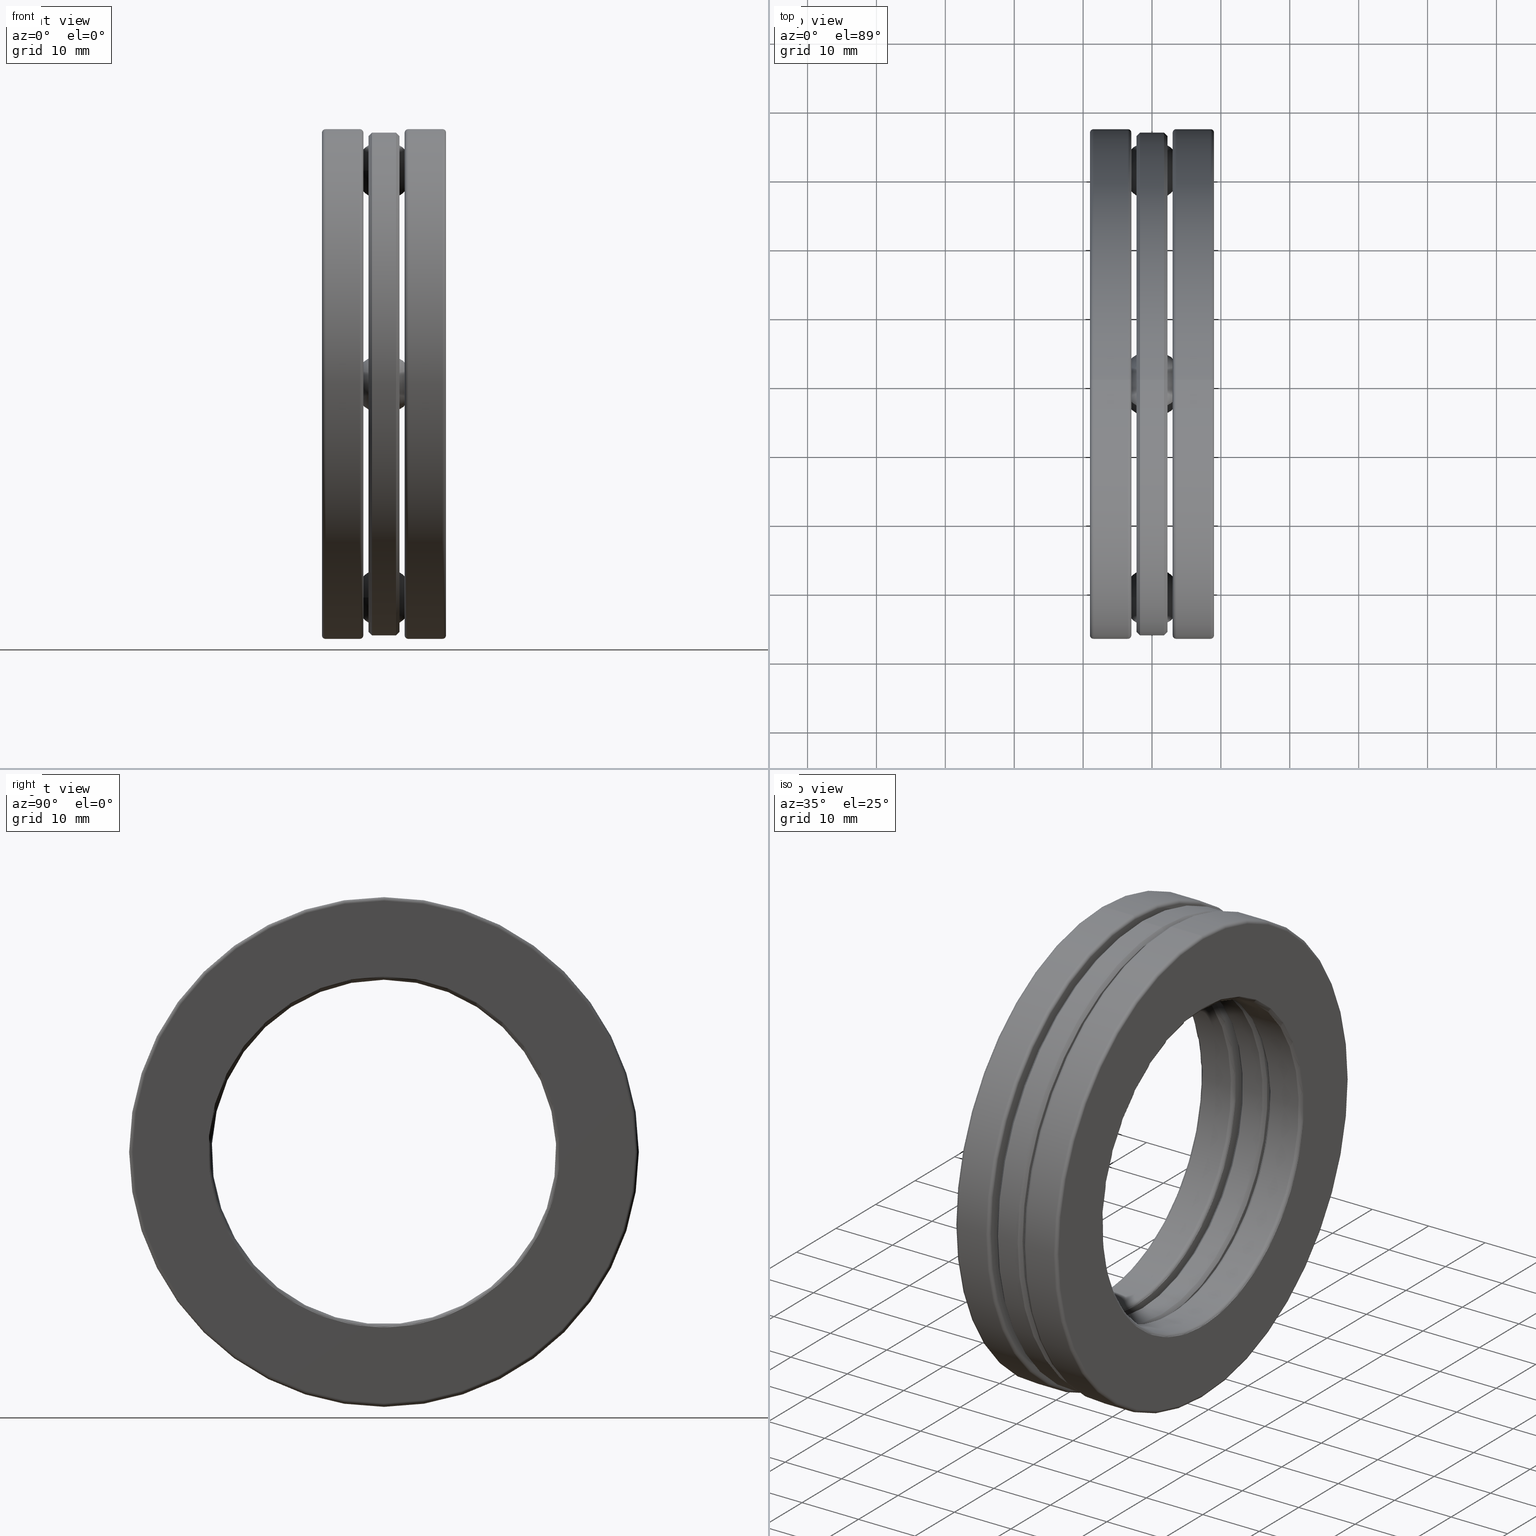
[diagram: canonical four-view strip — front | top / right | iso, engineering-drawing reading convention]
A machine part, canonical four-view strip (front | top / right | iso — engineering-drawing reading convention). The complete STEP part file that produces these views, byte-faithful:
ISO-10303-21;
HEADER;
FILE_DESCRIPTION (( 'STEP AP203' ),
    '1' );
FILE_NAME ('2910-ABB.step',
    '2017-03-07T16:43:02',
    ( '' ),
    ( '' ),
    'SwSTEP 2.0',
    'SolidWorks 2017',
    '' );
FILE_SCHEMA (( 'CONFIG_CONTROL_DESIGN' ));
ENDSEC;

DATA;
#1 = CIRCLE ( 'NONE', #438, 1.004499999999999900 ) ;
#2 = PRODUCT_DEFINITION ( 'UNKNOWN', '', #550, #524 ) ;
#3 = ORIENTED_EDGE ( 'NONE', *, *, #650, .T. ) ;
#4 = VERTEX_POINT ( 'NONE', #794 ) ;
#5 = CIRCLE ( 'NONE', #689, 1.004499999999999900 ) ;
#6 = EDGE_CURVE ( 'NONE', #821, #821, #561, .T. ) ;
#7 = DIRECTION ( 'NONE',  ( -1.000000000000000000, -0.0000000000000000000, -0.0000000000000000000 ) ) ;
#8 = AXIS2_PLACEMENT_3D ( 'NONE', #29, #213, #718 ) ;
#9 = CLOSED_SHELL ( 'NONE', ( #75 ) ) ;
#10 = ORIENTED_EDGE ( 'NONE', *, *, #157, .T. ) ;
#11 = CONICAL_SURFACE ( 'NONE', #654, 1.416499999999999400, 0.7853981633974502800 ) ;
#12 = DIRECTION ( 'NONE',  ( 0.0000000000000000000, 0.0000000000000000000, 1.000000000000000000 ) ) ;
#13 = EDGE_CURVE ( 'NONE', #94, #94, #128, .T. ) ;
#14 = FACE_BOUND ( 'NONE', #139, .T. ) ;
#15 = PLANE ( 'NONE',  #559 ) ;
#16 = EDGE_LOOP ( 'NONE', ( #767 ) ) ;
#17 = ORIENTED_EDGE ( 'NONE', *, *, #249, .T. ) ;
#18 = LOCAL_TIME ( 11, 43, 2.000000000000000000, #456 ) ;
#19 = DIRECTION ( 'NONE',  ( 0.0000000000000000000, 0.0000000000000000000, -1.000000000000000000 ) ) ;
#20 = AXIS2_PLACEMENT_3D ( 'NONE', #351, #731, #469 ) ;
#21 = FACE_BOUND ( 'NONE', #30, .T. ) ;
#22 = DIRECTION ( 'NONE',  ( 0.0000000000000000000, 0.0000000000000000000, 1.000000000000000000 ) ) ;
#23 = DIRECTION ( 'NONE',  ( -1.000000000000000000, 0.0000000000000000000, 0.0000000000000000000 ) ) ;
#24 = CARTESIAN_POINT ( 'NONE',  ( 0.1181690300000006300, 0.0000000000000000000, 1.436499999999999400 ) ) ;
#25 = DIRECTION ( 'NONE',  ( -1.000000000000000000, -0.0000000000000000000, -0.0000000000000000000 ) ) ;
#26 = CARTESIAN_POINT ( 'NONE',  ( 0.0000000000000000000, 0.0000000000000000000, 0.0000000000000000000 ) ) ;
#27 = DIRECTION ( 'NONE',  ( 0.0000000000000000000, 0.0000000000000000000, 1.000000000000000000 ) ) ;
#28 = AXIS2_PLACEMENT_3D ( 'NONE', #420, #668, #656 ) ;
#29 = CARTESIAN_POINT ( 'NONE',  ( 0.08862500000000002300, 1.278405892217413100E-014, 1.220499999999999700 ) ) ;
#30 = EDGE_LOOP ( 'NONE', ( #129 ) ) ;
#31 = CARTESIAN_POINT ( 'NONE',  ( -0.3344999999999999600, 0.0000000000000000000, 1.456499999999999700 ) ) ;
#32 = EDGE_LOOP ( 'NONE', ( #186 ) ) ;
#33 = CIRCLE ( 'NONE', #390, 1.436499999999999200 ) ;
#34 = AXIS2_PLACEMENT_3D ( 'NONE', #138, #704, #506 ) ;
#35 = DIRECTION ( 'NONE',  ( -1.000000000000000000, -0.0000000000000000000, -0.0000000000000000000 ) ) ;
#36 = DIRECTION ( 'NONE',  ( -1.000000000000000000, -0.0000000000000000000, -0.0000000000000000000 ) ) ;
#37 = TOROIDAL_SURFACE ( 'NONE', #206, 1.436499999999999200, 0.02000000000000014600 ) ;
#38 = EDGE_LOOP ( 'NONE', ( #17 ) ) ;
#39 = ADVANCED_FACE ( 'NONE', ( #683, #304 ), #692, .F. ) ;
#40 = ORIENTED_EDGE ( 'NONE', *, *, #631, .F. ) ;
#41 = CARTESIAN_POINT ( 'NONE',  ( 0.3345000000000006900, 0.0000000000000000000, 0.0000000000000000000 ) ) ;
#42 = CIRCLE ( 'NONE', #459, 1.436499999999999400 ) ;
#43 = DIRECTION ( 'NONE',  ( -1.000000000000000000, -0.0000000000000000000, -0.0000000000000000000 ) ) ;
#44 = DIRECTION ( 'NONE',  ( 0.0000000000000000000, 0.0000000000000000000, 1.000000000000000000 ) ) ;
#45 = EDGE_CURVE ( 'NONE', #4, #4, #673, .T. ) ;
#46 = AXIS2_PLACEMENT_3D ( 'NONE', #349, #155, #91 ) ;
#47 = FACE_OUTER_BOUND ( 'NONE', #819, .T. ) ;
#48 = EDGE_LOOP ( 'NONE', ( #402 ) ) ;
#49 = EDGE_LOOP ( 'NONE', ( #727 ) ) ;
#50 = DIRECTION ( 'NONE',  ( -1.000000000000000000, -0.0000000000000000000, -0.0000000000000000000 ) ) ;
#51 = FACE_OUTER_BOUND ( 'NONE', #32, .T. ) ;
#52 = MANIFOLD_SOLID_BREP ( 'Revolve3', #233 ) ;
#53 = DIRECTION ( 'NONE',  ( 0.0000000000000000000, 0.0000000000000000000, 1.000000000000000000 ) ) ;
#54 = CARTESIAN_POINT ( 'NONE',  ( -0.3544999999999998700, 0.0000000000000000000, 0.0000000000000000000 ) ) ;
#55 = FACE_OUTER_BOUND ( 'NONE', #140, .T. ) ;
#56 = LOCAL_TIME ( 11, 43, 2.000000000000000000, #102 ) ;
#57 = ORIENTED_EDGE ( 'NONE', *, *, #45, .F. ) ;
#58 = DIRECTION ( 'NONE',  ( 0.0000000000000000000, 0.0000000000000000000, -1.000000000000000000 ) ) ;
#59 = VERTEX_POINT ( 'NONE', #145 ) ;
#60 = EDGE_CURVE ( 'NONE', #725, #725, #721, .T. ) ;
#61 = FACE_OUTER_BOUND ( 'NONE', #663, .T. ) ;
#62 = DIRECTION ( 'NONE',  ( -1.000000000000000000, -0.0000000000000000000, -0.0000000000000000000 ) ) ;
#63 = AXIS2_PLACEMENT_3D ( 'NONE', #122, #685, #117 ) ;
#64 = CARTESIAN_POINT ( 'NONE',  ( 0.08862500000000002300, 1.220499999999999700, 0.0000000000000000000 ) ) ;
#65 = FACE_OUTER_BOUND ( 'NONE', #749, .T. ) ;
#66 = DIRECTION ( 'NONE',  ( 0.0000000000000000000, 0.0000000000000000000, 1.000000000000000000 ) ) ;
#67 = FACE_OUTER_BOUND ( 'NONE', #341, .T. ) ;
#68 = CALENDAR_DATE ( 2017, 7, 3 ) ;
#69 = EDGE_LOOP ( 'NONE', ( #365 ) ) ;
#70 = VERTEX_POINT ( 'NONE', #715 ) ;
#71 = EDGE_LOOP ( 'NONE', ( #40 ) ) ;
#72 = CYLINDRICAL_SURFACE ( 'NONE', #148, 1.004499999999999900 ) ;
#73 = AXIS2_PLACEMENT_3D ( 'NONE', #696, #258, #327 ) ;
#74 = DIRECTION ( 'NONE',  ( 0.0000000000000000000, 0.0000000000000000000, 1.000000000000000000 ) ) ;
#75 = ADVANCED_FACE ( 'NONE', ( ), #787, .T. ) ;
#76 = DIRECTION ( 'NONE',  ( 1.000000000000000000, 0.0000000000000000000, 0.0000000000000000000 ) ) ;
#77 = CARTESIAN_POINT ( 'NONE',  ( 0.0000000000000000000, 0.0000000000000000000, 0.0000000000000000000 ) ) ;
#78 = CYLINDRICAL_SURFACE ( 'NONE', #299, 0.9844999999999999300 ) ;
#79 = ADVANCED_FACE ( 'NONE', ( #498, #67 ), #312, .F. ) ;
#80 = EDGE_LOOP ( 'NONE', ( #675 ) ) ;
#81 = COORDINATED_UNIVERSAL_TIME_OFFSET ( 5, 0, .BEHIND. ) ;
#82 = AXIS2_PLACEMENT_3D ( 'NONE', #798, #347, #281 ) ;
#83 = ORIENTED_EDGE ( 'NONE', *, *, #805, .F. ) ;
#84 = VERTEX_POINT ( 'NONE', #353 ) ;
#85 = CARTESIAN_POINT ( 'NONE',  ( 0.3345000000000006900, 0.0000000000000000000, 0.0000000000000000000 ) ) ;
#86 = CC_DESIGN_DATE_AND_TIME_ASSIGNMENT ( #529, #593, ( #2 ) ) ;
#87 = DIRECTION ( 'NONE',  ( -1.000000000000000000, 0.0000000000000000000, 0.0000000000000000000 ) ) ;
#88 = CARTESIAN_POINT ( 'NONE',  ( -0.1181690299999999100, 0.0000000000000000000, 0.0000000000000000000 ) ) ;
#89 = AXIS2_PLACEMENT_3D ( 'NONE', #762, #321, #376 ) ;
#90 = CYLINDRICAL_SURFACE ( 'NONE', #168, 0.1765000000000000200 ) ;
#91 = DIRECTION ( 'NONE',  ( 0.0000000000000000000, 0.0000000000000000000, 1.000000000000000000 ) ) ;
#92 = DIRECTION ( 'NONE',  ( -1.000000000000000000, -0.0000000000000000000, -0.0000000000000000000 ) ) ;
#93 = ORIENTED_EDGE ( 'NONE', *, *, #179, .F. ) ;
#94 = VERTEX_POINT ( 'NONE', #733 ) ;
#95 = ADVANCED_FACE ( 'NONE', ( #385, #440 ), #323, .F. ) ;
#96 = AXIS2_PLACEMENT_3D ( 'NONE', #289, #588, #358 ) ;
#97 = FACE_OUTER_BOUND ( 'NONE', #636, .T. ) ;
#98 = CARTESIAN_POINT ( 'NONE',  ( 0.08862500000000002300, 1.220499999999999700, -0.1765000000000000200 ) ) ;
#99 = DIRECTION ( 'NONE',  ( 0.0000000000000000000, 0.0000000000000000000, 1.000000000000000000 ) ) ;
#100 = ADVANCED_FACE ( 'NONE', ( ), #719, .T. ) ;
#101 = CIRCLE ( 'NONE', #28, 0.1765000000000000200 ) ;
#102 = COORDINATED_UNIVERSAL_TIME_OFFSET ( 5, 0, .BEHIND. ) ;
#103 = ORIENTED_EDGE ( 'NONE', *, *, #726, .T. ) ;
#104 = EDGE_LOOP ( 'NONE', ( #244 ) ) ;
#105 = VERTEX_POINT ( 'NONE', #214 ) ;
#106 = SECURITY_CLASSIFICATION ( '', '', #309 ) ;
#107 = DIRECTION ( 'NONE',  ( 1.000000000000000000, 0.0000000000000000000, 0.0000000000000000000 ) ) ;
#108 = DIRECTION ( 'NONE',  ( 1.000000000000000000, 0.0000000000000000000, 0.0000000000000000000 ) ) ;
#109 = AXIS2_PLACEMENT_3D ( 'NONE', #653, #792, #786 ) ;
#110 = PERSON_AND_ORGANIZATION_ROLE ( 'classification_officer' ) ;
#111 = DIRECTION ( 'NONE',  ( 1.000000000000000000, 0.0000000000000000000, 0.0000000000000000000 ) ) ;
#112 = AXIS2_PLACEMENT_3D ( 'NONE', #229, #671, #364 ) ;
#113 = EDGE_LOOP ( 'NONE', ( #746 ) ) ;
#114 = ORIENTED_EDGE ( 'NONE', *, *, #526, .T. ) ;
#115 = ORGANIZATION ( 'UNSPECIFIED', 'UNSPECIFIED', '' ) ;
#116 = TOROIDAL_SURFACE ( 'NONE', #779, 1.220499999999999700, 0.1715000000000000700 ) ;
#117 = DIRECTION ( 'NONE',  ( 0.0000000000000000000, 0.0000000000000000000, 1.000000000000000000 ) ) ;
#118 = CC_DESIGN_SECURITY_CLASSIFICATION ( #106, ( #550 ) ) ;
#119 = FACE_BOUND ( 'NONE', #448, .T. ) ;
#120 = TOROIDAL_SURFACE ( 'NONE', #82, 1.436499999999999200, 0.02000000000000016300 ) ;
#121 = ORIENTED_EDGE ( 'NONE', *, *, #760, .F. ) ;
#122 = CARTESIAN_POINT ( 'NONE',  ( -0.1381690299999998600, 0.0000000000000000000, 0.0000000000000000000 ) ) ;
#123 = AXIS2_PLACEMENT_3D ( 'NONE', #88, #274, #413 ) ;
#124 = UNCERTAINTY_MEASURE_WITH_UNIT (LENGTH_MEASURE( 1.000000000000000100E-005 ), #607, 'distance_accuracy_value', 'NONE');
#125 = CC_DESIGN_PERSON_AND_ORGANIZATION_ASSIGNMENT ( #765, #110, ( #106 ) ) ;
#126 = PLANE ( 'NONE',  #586 ) ;
#127 = CIRCLE ( 'NONE', #20, 1.436499999999999400 ) ;
#128 = CIRCLE ( 'NONE', #527, 1.004499999999999900 ) ;
#129 = ORIENTED_EDGE ( 'NONE', *, *, #451, .T. ) ;
#130 = DATE_AND_TIME ( #176, #18 ) ;
#131 = AXIS2_PLACEMENT_3D ( 'NONE', #457, #345, #716 ) ;
#132 = CIRCLE ( 'NONE', #447, 1.456499999999999700 ) ;
#133 = AXIS2_PLACEMENT_3D ( 'NONE', #218, #154, #288 ) ;
#134 = CARTESIAN_POINT ( 'NONE',  ( -0.1181690299999999100, 0.0000000000000000000, 0.0000000000000000000 ) ) ;
#135 = DIRECTION ( 'NONE',  ( 1.000000000000000000, 0.0000000000000000000, 0.0000000000000000000 ) ) ;
#136 = ADVANCED_FACE ( 'NONE', ( #774, #445 ), #217, .F. ) ;
#137 = ORIENTED_EDGE ( 'NONE', *, *, #488, .T. ) ;
#138 = CARTESIAN_POINT ( 'NONE',  ( 0.1181690300000006300, 0.0000000000000000000, 0.0000000000000000000 ) ) ;
#139 = EDGE_LOOP ( 'NONE', ( #83 ) ) ;
#140 = EDGE_LOOP ( 'NONE', ( #609 ) ) ;
#141 = ADVANCED_FACE ( 'NONE', ( #537, #594 ), #126, .F. ) ;
#142 = DIRECTION ( 'NONE',  ( -1.000000000000000000, -0.0000000000000000000, -0.0000000000000000000 ) ) ;
#143 = ADVANCED_FACE ( 'NONE', ( #494, #230 ), #560, .T. ) ;
#144 = EDGE_CURVE ( 'NONE', #759, #759, #277, .T. ) ;
#145 = CARTESIAN_POINT ( 'NONE',  ( -0.08862499999999999500, 0.0000000000000000000, 1.416499999999999400 ) ) ;
#146 = FACE_OUTER_BOUND ( 'NONE', #69, .T. ) ;
#147 = EDGE_LOOP ( 'NONE', ( #442 ) ) ;
#148 = AXIS2_PLACEMENT_3D ( 'NONE', #782, #159, #356 ) ;
#149 = ORIENTED_EDGE ( 'NONE', *, *, #366, .T. ) ;
#150 = VERTEX_POINT ( 'NONE', #783 ) ;
#151 = CARTESIAN_POINT ( 'NONE',  ( -0.08862499999999996800, 0.0000000000000000000, 1.024500000000000200 ) ) ;
#152 = CIRCLE ( 'NONE', #641, 0.1765000000000000200 ) ;
#153 = DIRECTION ( 'NONE',  ( 0.0000000000000000000, 0.0000000000000000000, 1.000000000000000000 ) ) ;
#154 = DIRECTION ( 'NONE',  ( -1.000000000000000000, -0.0000000000000000000, -0.0000000000000000000 ) ) ;
#155 = DIRECTION ( 'NONE',  ( -1.000000000000000000, -0.0000000000000000000, -0.0000000000000000000 ) ) ;
#156 = CARTESIAN_POINT ( 'NONE',  ( -0.08862499999999996800, 0.0000000000000000000, 0.0000000000000000000 ) ) ;
#157 = EDGE_CURVE ( 'NONE', #325, #325, #408, .T. ) ;
#158 = ADVANCED_FACE ( 'NONE', ( #55, #146 ), #763, .T. ) ;
#159 = DIRECTION ( 'NONE',  ( -1.000000000000000000, -0.0000000000000000000, -0.0000000000000000000 ) ) ;
#160 = CARTESIAN_POINT ( 'NONE',  ( 0.3345000000000006900, 0.0000000000000000000, 1.456499999999999700 ) ) ;
#161 = ORIENTED_EDGE ( 'NONE', *, *, #60, .F. ) ;
#162 = ORIENTED_EDGE ( 'NONE', *, *, #615, .T. ) ;
#163 = ORIENTED_EDGE ( 'NONE', *, *, #558, .F. ) ;
#164 = FACE_OUTER_BOUND ( 'NONE', #647, .T. ) ;
#165 = DIRECTION ( 'NONE',  ( 0.0000000000000000000, 0.0000000000000000000, 1.000000000000000000 ) ) ;
#166 = PERSON_AND_ORGANIZATION_ROLE ( 'creator' ) ;
#167 = ADVANCED_BREP_SHAPE_REPRESENTATION ( '2910-ABB', ( #410, #52, #227, #240, #352, #618, #180, #251 ), #181 ) ;
#168 = AXIS2_PLACEMENT_3D ( 'NONE', #589, #525, #795 ) ;
#169 = DIRECTION ( 'NONE',  ( -1.000000000000000000, -0.0000000000000000000, -0.0000000000000000000 ) ) ;
#170 = DIRECTION ( 'NONE',  ( 1.000000000000000000, 0.0000000000000000000, 0.0000000000000000000 ) ) ;
#171 = DIRECTION ( 'NONE',  ( 0.0000000000000000000, 0.0000000000000000000, -1.000000000000000000 ) ) ;
#172 = TOROIDAL_SURFACE ( 'NONE', #63, 1.004499999999999900, 0.02000000000000000700 ) ;
#173 = DIRECTION ( 'NONE',  ( -1.000000000000000000, -0.0000000000000000000, -0.0000000000000000000 ) ) ;
#174 = APPLICATION_PROTOCOL_DEFINITION ( 'international standard', 'config_control_design', 1994, #483 ) ;
#175 = ORIENTED_EDGE ( 'NONE', *, *, #492, .T. ) ;
#176 = CALENDAR_DATE ( 2017, 7, 3 ) ;
#177 = SPHERICAL_SURFACE ( 'NONE', #326, 0.1715000000000000700 ) ;
#178 = DIRECTION ( 'NONE',  ( 1.000000000000000000, 0.0000000000000000000, 0.0000000000000000000 ) ) ;
#179 = EDGE_CURVE ( 'NONE', #105, #105, #101, .T. ) ;
#180 = MANIFOLD_SOLID_BREP ( 'CirPattern7', #803 ) ;
#181 =( GEOMETRIC_REPRESENTATION_CONTEXT ( 3 ) GLOBAL_UNCERTAINTY_ASSIGNED_CONTEXT ( ( #124 ) ) GLOBAL_UNIT_ASSIGNED_CONTEXT ( ( #607, #228, #605 ) ) REPRESENTATION_CONTEXT ( 'NONE', 'WORKASPACE' ) );
#182 = DIRECTION ( 'NONE',  ( 0.0000000000000000000, 0.0000000000000000000, 1.000000000000000000 ) ) ;
#183 = CARTESIAN_POINT ( 'NONE',  ( -0.08862499999999996800, 0.0000000000000000000, 0.0000000000000000000 ) ) ;
#184 = CALENDAR_DATE ( 2017, 7, 3 ) ;
#185 = EDGE_LOOP ( 'NONE', ( #371 ) ) ;
#186 = ORIENTED_EDGE ( 'NONE', *, *, #191, .F. ) ;
#187 = TOROIDAL_SURFACE ( 'NONE', #697, 1.004499999999999900, 0.01999999999999975400 ) ;
#188 = APPROVAL ( #370, 'UNSPECIFIED' ) ;
#189 = DIRECTION ( 'NONE',  ( 1.000000000000000000, 0.0000000000000000000, 0.0000000000000000000 ) ) ;
#190 = FACE_OUTER_BOUND ( 'NONE', #49, .T. ) ;
#191 = EDGE_CURVE ( 'NONE', #600, #600, #243, .T. ) ;
#192 = EDGE_LOOP ( 'NONE', ( #701 ) ) ;
#193 = EDGE_LOOP ( 'NONE', ( #199 ) ) ;
#194 = PERSON_AND_ORGANIZATION ( #388, #115 ) ;
#195 = DIRECTION ( 'NONE',  ( -1.000000000000000000, -0.0000000000000000000, -0.0000000000000000000 ) ) ;
#196 = CONICAL_SURFACE ( 'NONE', #761, 1.436499999999999400, 0.7853981633974502800 ) ;
#197 = AXIS2_PLACEMENT_3D ( 'NONE', #294, #513, #165 ) ;
#198 = DIRECTION ( 'NONE',  ( 0.0000000000000000000, 0.0000000000000000000, 1.000000000000000000 ) ) ;
#199 = ORIENTED_EDGE ( 'NONE', *, *, #512, .F. ) ;
#200 = EDGE_CURVE ( 'NONE', #582, #582, #384, .T. ) ;
#201 = EDGE_LOOP ( 'NONE', ( #446 ) ) ;
#202 = FACE_OUTER_BOUND ( 'NONE', #693, .T. ) ;
#203 = DIRECTION ( 'NONE',  ( 0.0000000000000000000, 0.0000000000000000000, -1.000000000000000000 ) ) ;
#204 = PRODUCT_RELATED_PRODUCT_CATEGORY ( 'detail', '', ( #640 ) ) ;
#205 = ADVANCED_FACE ( 'NONE', ( #421, #672 ), #315, .T. ) ;
#206 = AXIS2_PLACEMENT_3D ( 'NONE', #535, #742, #369 ) ;
#207 = FACE_OUTER_BOUND ( 'NONE', #253, .T. ) ;
#208 = DATE_AND_TIME ( #722, #472 ) ;
#209 = DIRECTION ( 'NONE',  ( 0.0000000000000000000, 0.0000000000000000000, 1.000000000000000000 ) ) ;
#210 = EDGE_LOOP ( 'NONE', ( #635 ) ) ;
#211 = EDGE_LOOP ( 'NONE', ( #332 ) ) ;
#212 = CARTESIAN_POINT ( 'NONE',  ( -0.1181690299999999100, 0.0000000000000000000, 1.344791312443223800 ) ) ;
#213 = DIRECTION ( 'NONE',  ( 1.000000000000000000, 0.0000000000000000000, 0.0000000000000000000 ) ) ;
#214 = CARTESIAN_POINT ( 'NONE',  ( 0.08862500000000002300, -0.1765000000000042900, -1.220499999999999000 ) ) ;
#215 = AXIS2_PLACEMENT_3D ( 'NONE', #549, #111, #19 ) ;
#216 = CARTESIAN_POINT ( 'NONE',  ( 0.3545000000000001500, 0.0000000000000000000, 0.0000000000000000000 ) ) ;
#217 = CONICAL_SURFACE ( 'NONE', #109, 1.024500000000000200, 0.7853981633974498300 ) ;
#218 = CARTESIAN_POINT ( 'NONE',  ( -0.08862499999999996800, -1.220499999999999700, 0.0000000000000000000 ) ) ;
#219 = EDGE_LOOP ( 'NONE', ( #10 ) ) ;
#220 = APPROVAL_DATE_TIME ( #570, #188 ) ;
#221 = ORIENTED_EDGE ( 'NONE', *, *, #566, .F. ) ;
#222 = ADVANCED_FACE ( 'NONE', ( #207, #47 ), #645, .T. ) ;
#223 = ORIENTED_EDGE ( 'NONE', *, *, #330, .F. ) ;
#224 = FACE_OUTER_BOUND ( 'NONE', #811, .T. ) ;
#225 = CARTESIAN_POINT ( 'NONE',  ( -0.3545393700787399800, -1.220499999999999700, 0.0000000000000000000 ) ) ;
#226 = ADVANCED_FACE ( 'NONE', ( #190, #65 ), #37, .T. ) ;
#227 = MANIFOLD_SOLID_BREP ( 'Revolve4', #502 ) ;
#228 =( NAMED_UNIT ( * ) PLANE_ANGLE_UNIT ( ) SI_UNIT ( $, .RADIAN. ) );
#229 = CARTESIAN_POINT ( 'NONE',  ( 0.1381690300000006100, 0.0000000000000000000, 0.0000000000000000000 ) ) ;
#230 = FACE_OUTER_BOUND ( 'NONE', #193, .T. ) ;
#231 = EDGE_LOOP ( 'NONE', ( #306 ) ) ;
#232 = LOCAL_TIME ( 11, 43, 2.000000000000000000, #81 ) ;
#233 = CLOSED_SHELL ( 'NONE', ( #634, #141, #222, #397, #707, #415, #475, #705, #301, #79 ) ) ;
#234 = VERTEX_POINT ( 'NONE', #518 ) ;
#235 = CYLINDRICAL_SURFACE ( 'NONE', #633, 0.9844999999999999300 ) ;
#236 = APPROVAL_ROLE ( '' ) ;
#237 = CARTESIAN_POINT ( 'NONE',  ( -0.1181690299999999100, 0.0000000000000000000, 0.0000000000000000000 ) ) ;
#238 = EDGE_CURVE ( 'NONE', #573, #573, #745, .T. ) ;
#239 = AXIS2_PLACEMENT_3D ( 'NONE', #400, #574, #209 ) ;
#240 = MANIFOLD_SOLID_BREP ( 'CirPattern4[1]', #473 ) ;
#241 = DIRECTION ( 'NONE',  ( -1.000000000000000000, -0.0000000000000000000, -0.0000000000000000000 ) ) ;
#242 = MECHANICAL_CONTEXT ( 'NONE', #363, 'mechanical' ) ;
#243 = CIRCLE ( 'NONE', #255, 1.096208687556776300 ) ;
#244 = ORIENTED_EDGE ( 'NONE', *, *, #383, .T. ) ;
#245 = EDGE_LOOP ( 'NONE', ( #411 ) ) ;
#246 = VERTEX_POINT ( 'NONE', #24 ) ;
#247 = DIRECTION ( 'NONE',  ( -1.000000000000000000, -0.0000000000000000000, -0.0000000000000000000 ) ) ;
#248 = CIRCLE ( 'NONE', #123, 1.344791312443223800 ) ;
#249 = EDGE_CURVE ( 'NONE', #778, #778, #528, .T. ) ;
#250 = DIRECTION ( 'NONE',  ( 0.0000000000000000000, 0.0000000000000000000, -1.000000000000000000 ) ) ;
#251 = AXIS2_PLACEMENT_3D ( 'NONE', #26, #602, #178 ) ;
#252 = CYLINDRICAL_SURFACE ( 'NONE', #674, 1.456499999999999700 ) ;
#253 = EDGE_LOOP ( 'NONE', ( #149 ) ) ;
#254 = EDGE_LOOP ( 'NONE', ( #260 ) ) ;
#255 = AXIS2_PLACEMENT_3D ( 'NONE', #519, #36, #310 ) ;
#256 = DIRECTION ( 'NONE',  ( 1.000000000000000000, -0.0000000000000000000, 0.0000000000000000000 ) ) ;
#257 = CC_DESIGN_PERSON_AND_ORGANIZATION_ASSIGNMENT ( #307, #670, ( #640 ) ) ;
#258 = DIRECTION ( 'NONE',  ( -1.000000000000000000, -0.0000000000000000000, -0.0000000000000000000 ) ) ;
#259 = FACE_BOUND ( 'NONE', #463, .T. ) ;
#260 = ORIENTED_EDGE ( 'NONE', *, *, #444, .F. ) ;
#261 = ORIENTED_EDGE ( 'NONE', *, *, #785, .F. ) ;
#262 = VERTEX_POINT ( 'NONE', #583 ) ;
#263 = CYLINDRICAL_SURFACE ( 'NONE', #575, 0.1765000000000000200 ) ;
#264 = AXIS2_PLACEMENT_3D ( 'NONE', #818, #108, #171 ) ;
#265 = ADVANCED_FACE ( 'NONE', ( #616, #755 ), #453, .F. ) ;
#266 = DIRECTION ( 'NONE',  ( 0.0000000000000000000, 0.0000000000000000000, 1.000000000000000000 ) ) ;
#267 = CARTESIAN_POINT ( 'NONE',  ( -0.08862499999999999500, 0.0000000000000000000, 0.0000000000000000000 ) ) ;
#268 = FACE_OUTER_BOUND ( 'NONE', #354, .T. ) ;
#269 = EDGE_LOOP ( 'NONE', ( #3 ) ) ;
#270 = ORIENTED_EDGE ( 'NONE', *, *, #480, .T. ) ;
#271 = DIRECTION ( 'NONE',  ( -1.000000000000000000, -0.0000000000000000000, -0.0000000000000000000 ) ) ;
#272 = ADVANCED_FACE ( 'NONE', ( #361, #690 ), #90, .F. ) ;
#273 = CARTESIAN_POINT ( 'NONE',  ( 0.1381690300000006100, 0.0000000000000000000, 0.0000000000000000000 ) ) ;
#274 = DIRECTION ( 'NONE',  ( -1.000000000000000000, -0.0000000000000000000, -0.0000000000000000000 ) ) ;
#275 = DIRECTION ( 'NONE',  ( 0.0000000000000000000, 1.000000000000000000, -3.491481338843133400E-015 ) ) ;
#276 = AXIS2_PLACEMENT_3D ( 'NONE', #337, #770, #396 ) ;
#277 = CIRCLE ( 'NONE', #73, 0.9844999999999999300 ) ;
#278 = CARTESIAN_POINT ( 'NONE',  ( -0.1181690299999999100, 0.0000000000000000000, 1.004499999999999900 ) ) ;
#279 = EDGE_LOOP ( 'NONE', ( #342 ) ) ;
#280 = DATE_AND_TIME ( #68, #56 ) ;
#281 = DIRECTION ( 'NONE',  ( 0.0000000000000000000, 0.0000000000000000000, 1.000000000000000000 ) ) ;
#282 = ORIENTED_EDGE ( 'NONE', *, *, #444, .T. ) ;
#283 = DIRECTION ( 'NONE',  ( -1.000000000000000000, -0.0000000000000000000, -0.0000000000000000000 ) ) ;
#284 = VERTEX_POINT ( 'NONE', #576 ) ;
#285 = CARTESIAN_POINT ( 'NONE',  ( -0.3345000000000000200, 0.0000000000000000000, 0.0000000000000000000 ) ) ;
#286 = FACE_OUTER_BOUND ( 'NONE', #629, .T. ) ;
#287 = CARTESIAN_POINT ( 'NONE',  ( 0.06862500000000003300, 0.0000000000000000000, 1.004499999999999900 ) ) ;
#288 = DIRECTION ( 'NONE',  ( 0.0000000000000000000, 0.0000000000000000000, 1.000000000000000000 ) ) ;
#289 = CARTESIAN_POINT ( 'NONE',  ( -0.08862499999999996800, -4.261352974058043300E-015, -1.220499999999999700 ) ) ;
#290 = ADVANCED_FACE ( 'NONE', ( #508, #292 ), #303, .F. ) ;
#291 = CIRCLE ( 'NONE', #338, 0.9844999999999999300 ) ;
#292 = FACE_OUTER_BOUND ( 'NONE', #489, .T. ) ;
#293 = APPROVAL_PERSON_ORGANIZATION ( #386, #188, #432 ) ;
#294 = CARTESIAN_POINT ( 'NONE',  ( -0.1381690299999999100, 0.0000000000000000000, 0.0000000000000000000 ) ) ;
#295 = ORIENTED_EDGE ( 'NONE', *, *, #695, .F. ) ;
#296 = EDGE_LOOP ( 'NONE', ( #476 ) ) ;
#297 = APPROVAL_ROLE ( '' ) ;
#298 = DIRECTION ( 'NONE',  ( -1.000000000000000000, -0.0000000000000000000, -0.0000000000000000000 ) ) ;
#299 = AXIS2_PLACEMENT_3D ( 'NONE', #813, #35, #302 ) ;
#300 = CARTESIAN_POINT ( 'NONE',  ( -0.3545393700787399800, 1.220499999999999700, 0.0000000000000000000 ) ) ;
#301 = ADVANCED_FACE ( 'NONE', ( #706, #698 ), #120, .T. ) ;
#302 = DIRECTION ( 'NONE',  ( 0.0000000000000000000, 0.0000000000000000000, 1.000000000000000000 ) ) ;
#303 = CYLINDRICAL_SURFACE ( 'NONE', #624, 0.1765000000000000200 ) ;
#304 = FACE_OUTER_BOUND ( 'NONE', #758, .T. ) ;
#305 = CC_DESIGN_PERSON_AND_ORGANIZATION_ASSIGNMENT ( #521, #166, ( #550 ) ) ;
#306 = ORIENTED_EDGE ( 'NONE', *, *, #6, .F. ) ;
#307 = PERSON_AND_ORGANIZATION ( #388, #115 ) ;
#308 = CIRCLE ( 'NONE', #493, 1.436499999999999200 ) ;
#309 = SECURITY_CLASSIFICATION_LEVEL ( 'unclassified' ) ;
#310 = DIRECTION ( 'NONE',  ( 0.0000000000000000000, 0.0000000000000000000, 1.000000000000000000 ) ) ;
#311 = AXIS2_PLACEMENT_3D ( 'NONE', #64, #256, #58 ) ;
#312 = PLANE ( 'NONE',  #215 ) ;
#313 = DIRECTION ( 'NONE',  ( 0.0000000000000000000, 0.0000000000000000000, 1.000000000000000000 ) ) ;
#314 = AXIS2_PLACEMENT_3D ( 'NONE', #660, #471, #723 ) ;
#315 = PLANE ( 'NONE',  #264 ) ;
#316 = PLANE ( 'NONE',  #533 ) ;
#317 = ORIENTED_EDGE ( 'NONE', *, *, #451, .F. ) ;
#318 = DIRECTION ( 'NONE',  ( 1.000000000000000000, 0.0000000000000000000, 0.0000000000000000000 ) ) ;
#319 = ORIENTED_EDGE ( 'NONE', *, *, #13, .F. ) ;
#320 = FACE_OUTER_BOUND ( 'NONE', #211, .T. ) ;
#321 = DIRECTION ( 'NONE',  ( 1.000000000000000000, 0.0000000000000000000, 0.0000000000000000000 ) ) ;
#322 = APPROVAL ( #477, 'UNSPECIFIED' ) ;
#323 = TOROIDAL_SURFACE ( 'NONE', #131, 1.220499999999999700, 0.1715000000000000700 ) ;
#324 = EDGE_LOOP ( 'NONE', ( #800 ) ) ;
#325 = VERTEX_POINT ( 'NONE', #343 ) ;
#326 = AXIS2_PLACEMENT_3D ( 'NONE', #780, #339, #87 ) ;
#327 = DIRECTION ( 'NONE',  ( 0.0000000000000000000, 0.0000000000000000000, 1.000000000000000000 ) ) ;
#328 = DIRECTION ( 'NONE',  ( 0.0000000000000000000, 0.0000000000000000000, 1.000000000000000000 ) ) ;
#329 = FACE_OUTER_BOUND ( 'NONE', #80, .T. ) ;
#330 = EDGE_CURVE ( 'NONE', #262, #262, #127, .T. ) ;
#331 = EDGE_LOOP ( 'NONE', ( #562 ) ) ;
#332 = ORIENTED_EDGE ( 'NONE', *, *, #512, .T. ) ;
#333 = FACE_OUTER_BOUND ( 'NONE', #296, .T. ) ;
#334 = CC_DESIGN_APPROVAL ( #455, ( #550 ) ) ;
#335 = DIRECTION ( 'NONE',  ( 1.000000000000000000, 0.0000000000000000000, 0.0000000000000000000 ) ) ;
#336 = ADVANCED_FACE ( 'NONE', ( #431, #809 ), #252, .T. ) ;
#337 = CARTESIAN_POINT ( 'NONE',  ( 0.0000000000000000000, 0.0000000000000000000, 0.0000000000000000000 ) ) ;
#338 = AXIS2_PLACEMENT_3D ( 'NONE', #41, #173, #606 ) ;
#339 = DIRECTION ( 'NONE',  ( 0.0000000000000000000, 0.0000000000000000000, 1.000000000000000000 ) ) ;
#340 = FACE_BOUND ( 'NONE', #628, .T. ) ;
#341 = EDGE_LOOP ( 'NONE', ( #103 ) ) ;
#342 = ORIENTED_EDGE ( 'NONE', *, *, #200, .T. ) ;
#343 = CARTESIAN_POINT ( 'NONE',  ( -0.06862499999999997800, 0.0000000000000000000, 1.004499999999999900 ) ) ;
#344 = FACE_OUTER_BOUND ( 'NONE', #611, .T. ) ;
#345 = DIRECTION ( 'NONE',  ( -1.000000000000000000, -0.0000000000000000000, -0.0000000000000000000 ) ) ;
#346 = CARTESIAN_POINT ( 'NONE',  ( 0.3345000000000006900, 0.0000000000000000000, 0.9844999999999999300 ) ) ;
#347 = DIRECTION ( 'NONE',  ( -1.000000000000000000, -0.0000000000000000000, -0.0000000000000000000 ) ) ;
#348 = AXIS2_PLACEMENT_3D ( 'NONE', #433, #815, #679 ) ;
#349 = CARTESIAN_POINT ( 'NONE',  ( 0.3345000000000006900, 0.0000000000000000000, 0.0000000000000000000 ) ) ;
#350 = ADVANCED_FACE ( 'NONE', ( ), #736, .T. ) ;
#351 = CARTESIAN_POINT ( 'NONE',  ( -0.06862500000000001900, 0.0000000000000000000, 0.0000000000000000000 ) ) ;
#352 = MANIFOLD_SOLID_BREP ( 'CirPattern4[2]', #509 ) ;
#353 = CARTESIAN_POINT ( 'NONE',  ( 0.08862500000000002300, -1.220499999999999700, 0.1765000000000000200 ) ) ;
#354 = EDGE_LOOP ( 'NONE', ( #317 ) ) ;
#355 = EDGE_LOOP ( 'NONE', ( #221 ) ) ;
#356 = DIRECTION ( 'NONE',  ( 0.0000000000000000000, 0.0000000000000000000, 1.000000000000000000 ) ) ;
#357 = CIRCLE ( 'NONE', #197, 1.456499999999999700 ) ;
#358 = DIRECTION ( 'NONE',  ( 0.0000000000000000000, -1.000000000000000000, 3.869473078844565300E-015 ) ) ;
#359 = CARTESIAN_POINT ( 'NONE',  ( -0.1381690299999999100, 0.0000000000000000000, 0.0000000000000000000 ) ) ;
#360 = ADVANCED_FACE ( 'NONE', ( #14, #259, #340, #569, #551, #399 ), #316, .F. ) ;
#361 = FACE_OUTER_BOUND ( 'NONE', #422, .T. ) ;
#362 = EDGE_LOOP ( 'NONE', ( #163 ) ) ;
#363 = APPLICATION_CONTEXT ( 'configuration controlled 3d designs of mechanical parts and assemblies' ) ;
#364 = DIRECTION ( 'NONE',  ( 0.0000000000000000000, 0.0000000000000000000, 1.000000000000000000 ) ) ;
#365 = ORIENTED_EDGE ( 'NONE', *, *, #695, .T. ) ;
#366 = EDGE_CURVE ( 'NONE', #750, #750, #1, .T. ) ;
#367 = FACE_OUTER_BOUND ( 'NONE', #434, .T. ) ;
#368 = CARTESIAN_POINT ( 'NONE',  ( 0.3545000000000001500, 0.0000000000000000000, 0.0000000000000000000 ) ) ;
#369 = DIRECTION ( 'NONE',  ( 0.0000000000000000000, 0.0000000000000000000, 1.000000000000000000 ) ) ;
#370 = APPROVAL_STATUS ( 'not_yet_approved' ) ;
#371 = ORIENTED_EDGE ( 'NONE', *, *, #666, .F. ) ;
#372 = ORIENTED_EDGE ( 'NONE', *, *, #526, .F. ) ;
#373 = ORIENTED_EDGE ( 'NONE', *, *, #191, .T. ) ;
#374 = CIRCLE ( 'NONE', #34, 1.436499999999999400 ) ;
#375 = DIRECTION ( 'NONE',  ( -1.000000000000000000, -0.0000000000000000000, -0.0000000000000000000 ) ) ;
#376 = DIRECTION ( 'NONE',  ( 0.0000000000000000000, 0.0000000000000000000, -1.000000000000000000 ) ) ;
#377 = FACE_OUTER_BOUND ( 'NONE', #691, .T. ) ;
#378 = EDGE_LOOP ( 'NONE', ( #162 ) ) ;
#379 = PERSON_AND_ORGANIZATION ( #388, #115 ) ;
#380 = AXIS2_PLACEMENT_3D ( 'NONE', #439, #545, #547 ) ;
#381 = ORIENTED_EDGE ( 'NONE', *, *, #404, .T. ) ;
#382 = CARTESIAN_POINT ( 'NONE',  ( -0.3345000000000000200, 0.0000000000000000000, 0.0000000000000000000 ) ) ;
#383 = EDGE_CURVE ( 'NONE', #563, #563, #479, .T. ) ;
#384 = CIRCLE ( 'NONE', #735, 1.004499999999999900 ) ;
#385 = FACE_OUTER_BOUND ( 'NONE', #201, .T. ) ;
#386 = PERSON_AND_ORGANIZATION ( #388, #115 ) ;
#387 = EDGE_LOOP ( 'NONE', ( #372 ) ) ;
#388 = PERSON ( 'UNSPECIFIED', 'UNSPECIFIED', 'UNSPECIFIED', ('UNSPECIFIED'), ('UNSPECIFIED'), ('UNSPECIFIED') ) ;
#389 = VERTEX_POINT ( 'NONE', #510 ) ;
#390 = AXIS2_PLACEMENT_3D ( 'NONE', #216, #590, #22 ) ;
#391 = EDGE_LOOP ( 'NONE', ( #522 ) ) ;
#392 = CYLINDRICAL_SURFACE ( 'NONE', #276, 1.436499999999999400 ) ;
#393 = ADVANCED_FACE ( 'NONE', ( #377, #462 ), #172, .T. ) ;
#394 = DIRECTION ( 'NONE',  ( -1.000000000000000000, -0.0000000000000000000, -0.0000000000000000000 ) ) ;
#395 = DIRECTION ( 'NONE',  ( -1.000000000000000000, -0.0000000000000000000, -0.0000000000000000000 ) ) ;
#396 = DIRECTION ( 'NONE',  ( 0.0000000000000000000, 0.0000000000000000000, 1.000000000000000000 ) ) ;
#397 = ADVANCED_FACE ( 'NONE', ( #329, #627 ), #78, .F. ) ;
#398 = CARTESIAN_POINT ( 'NONE',  ( 0.3345000000000006900, 0.0000000000000000000, 0.0000000000000000000 ) ) ;
#399 = FACE_OUTER_BOUND ( 'NONE', #764, .T. ) ;
#400 = CARTESIAN_POINT ( 'NONE',  ( 0.06862500000000000500, 0.0000000000000000000, 0.0000000000000000000 ) ) ;
#401 = ORIENTED_EDGE ( 'NONE', *, *, #666, .T. ) ;
#402 = ORIENTED_EDGE ( 'NONE', *, *, #726, .F. ) ;
#403 = VERTEX_POINT ( 'NONE', #790 ) ;
#404 = EDGE_CURVE ( 'NONE', #443, #443, #291, .T. ) ;
#405 = CARTESIAN_POINT ( 'NONE',  ( -0.08862499999999996800, -0.1765000000000042900, -1.220499999999999000 ) ) ;
#406 = AXIS2_PLACEMENT_3D ( 'NONE', #485, #107, #604 ) ;
#407 = CARTESIAN_POINT ( 'NONE',  ( -0.1381690299999999100, 0.0000000000000000000, 1.456499999999999700 ) ) ;
#408 = CIRCLE ( 'NONE', #538, 1.004499999999999900 ) ;
#409 = CARTESIAN_POINT ( 'NONE',  ( 0.0000000000000000000, 0.0000000000000000000, 0.0000000000000000000 ) ) ;
#410 = MANIFOLD_SOLID_BREP ( 'Revolve1', #777 ) ;
#411 = ORIENTED_EDGE ( 'NONE', *, *, #45, .T. ) ;
#412 = VERTEX_POINT ( 'NONE', #287 ) ;
#413 = DIRECTION ( 'NONE',  ( 0.0000000000000000000, 0.0000000000000000000, 1.000000000000000000 ) ) ;
#414 = CARTESIAN_POINT ( 'NONE',  ( 0.06862500000000000500, 0.0000000000000000000, 1.436499999999999400 ) ) ;
#415 = ADVANCED_FACE ( 'NONE', ( #784, #452 ), #741, .T. ) ;
#416 = CARTESIAN_POINT ( 'NONE',  ( -0.1181690299999999100, 0.0000000000000000000, 1.096208687556775600 ) ) ;
#417 = ADVANCED_FACE ( 'NONE', ( #119, #773, #592, #614, #419, #268 ), #744, .T. ) ;
#418 = CC_DESIGN_PERSON_AND_ORGANIZATION_ASSIGNMENT ( #486, #427, ( #550 ) ) ;
#419 = FACE_BOUND ( 'NONE', #554, .T. ) ;
#420 = CARTESIAN_POINT ( 'NONE',  ( 0.08862500000000002300, -4.261352974058043300E-015, -1.220499999999999700 ) ) ;
#421 = FACE_BOUND ( 'NONE', #279, .T. ) ;
#422 = EDGE_LOOP ( 'NONE', ( #282 ) ) ;
#423 = PERSON_AND_ORGANIZATION ( #388, #115 ) ;
#424 = ORIENTED_EDGE ( 'NONE', *, *, #743, .T. ) ;
#425 = VERTEX_POINT ( 'NONE', #515 ) ;
#426 = AXIS2_PLACEMENT_3D ( 'NONE', #398, #169, #328 ) ;
#427 = PERSON_AND_ORGANIZATION_ROLE ( 'design_supplier' ) ;
#428 = DIRECTION ( 'NONE',  ( 0.0000000000000000000, 0.0000000000000000000, -1.000000000000000000 ) ) ;
#429 = APPROVAL_STATUS ( 'not_yet_approved' ) ;
#430 = CARTESIAN_POINT ( 'NONE',  ( 7.959685191711037000E-017, 1.278405892217413100E-014, 1.220499999999999700 ) ) ;
#431 = FACE_OUTER_BOUND ( 'NONE', #572, .T. ) ;
#432 = APPROVAL_ROLE ( '' ) ;
#433 = CARTESIAN_POINT ( 'NONE',  ( 0.1181690300000006300, 0.0000000000000000000, 0.0000000000000000000 ) ) ;
#434 = EDGE_LOOP ( 'NONE', ( #541 ) ) ;
#435 = FACE_OUTER_BOUND ( 'NONE', #454, .T. ) ;
#436 = DIRECTION ( 'NONE',  ( 0.0000000000000000000, -1.000000000000000000, 1.047444401652940000E-014 ) ) ;
#437 = CARTESIAN_POINT ( 'NONE',  ( 0.1181690300000006300, 0.0000000000000000000, 0.0000000000000000000 ) ) ;
#438 = AXIS2_PLACEMENT_3D ( 'NONE', #437, #375, #53 ) ;
#439 = CARTESIAN_POINT ( 'NONE',  ( 7.959685191711037000E-017, -1.220499999999999700, 0.0000000000000000000 ) ) ;
#440 = FACE_OUTER_BOUND ( 'NONE', #210, .T. ) ;
#441 = ORIENTED_EDGE ( 'NONE', *, *, #60, .T. ) ;
#442 = ORIENTED_EDGE ( 'NONE', *, *, #769, .T. ) ;
#443 = VERTEX_POINT ( 'NONE', #346 ) ;
#444 = EDGE_CURVE ( 'NONE', #403, #403, #682, .T. ) ;
#445 = FACE_OUTER_BOUND ( 'NONE', #355, .T. ) ;
#446 = ORIENTED_EDGE ( 'NONE', *, *, #558, .T. ) ;
#447 = AXIS2_PLACEMENT_3D ( 'NONE', #772, #394, #12 ) ;
#448 = EDGE_LOOP ( 'NONE', ( #93 ) ) ;
#449 = FACE_BOUND ( 'NONE', #147, .T. ) ;
#450 = DIRECTION ( 'NONE',  ( -1.000000000000000000, -0.0000000000000000000, -0.0000000000000000000 ) ) ;
#451 = EDGE_CURVE ( 'NONE', #70, #70, #517, .T. ) ;
#452 = FACE_OUTER_BOUND ( 'NONE', #464, .T. ) ;
#453 = CONICAL_SURFACE ( 'NONE', #500, 1.024500000000000200, 0.7853981633974500600 ) ;
#454 = EDGE_LOOP ( 'NONE', ( #381 ) ) ;
#455 = APPROVAL ( #429, 'UNSPECIFIED' ) ;
#456 = COORDINATED_UNIVERSAL_TIME_OFFSET ( 5, 0, .BEHIND. ) ;
#457 = CARTESIAN_POINT ( 'NONE',  ( 7.959685191711037000E-017, 0.0000000000000000000, 0.0000000000000000000 ) ) ;
#458 = ADVANCED_FACE ( 'NONE', ( #734, #579 ), #72, .F. ) ;
#459 = AXIS2_PLACEMENT_3D ( 'NONE', #556, #619, #66 ) ;
#460 = DIRECTION ( 'NONE',  ( 0.0000000000000000000, 0.0000000000000000000, -1.000000000000000000 ) ) ;
#461 = CARTESIAN_POINT ( 'NONE',  ( -0.3545393700787399800, -4.261352974058043300E-015, -1.220499999999999700 ) ) ;
#462 = FACE_OUTER_BOUND ( 'NONE', #245, .T. ) ;
#463 = EDGE_LOOP ( 'NONE', ( #581 ) ) ;
#464 = EDGE_LOOP ( 'NONE', ( #261 ) ) ;
#465 = VERTEX_POINT ( 'NONE', #31 ) ;
#466 = DIRECTION ( 'NONE',  ( 0.0000000000000000000, 0.0000000000000000000, 1.000000000000000000 ) ) ;
#467 = CARTESIAN_POINT ( 'NONE',  ( -0.08862499999999996800, 0.1765000000000127900, 1.220499999999997900 ) ) ;
#468 = AXIS2_PLACEMENT_3D ( 'NONE', #651, #275, #23 ) ;
#469 = DIRECTION ( 'NONE',  ( 0.0000000000000000000, 0.0000000000000000000, 1.000000000000000000 ) ) ;
#470 = DIMENSIONAL_EXPONENTS ( 1.000000000000000000, 0.0000000000000000000, 0.0000000000000000000, 0.0000000000000000000, 0.0000000000000000000, 0.0000000000000000000, 0.0000000000000000000 ) ;
#471 = DIRECTION ( 'NONE',  ( -1.000000000000000000, -0.0000000000000000000, -0.0000000000000000000 ) ) ;
#472 = LOCAL_TIME ( 11, 43, 2.000000000000000000, #756 ) ;
#473 = CLOSED_SHELL ( 'NONE', ( #100 ) ) ;
#474 = CARTESIAN_POINT ( 'NONE',  ( 0.1181690300000006300, 0.0000000000000000000, 1.096208687556776300 ) ) ;
#475 = ADVANCED_FACE ( 'NONE', ( #637, #367 ), #677, .T. ) ;
#476 = ORIENTED_EDGE ( 'NONE', *, *, #6, .T. ) ;
#477 = APPROVAL_STATUS ( 'not_yet_approved' ) ;
#478 = DIRECTION ( 'NONE',  ( -1.000000000000000000, -0.0000000000000000000, -0.0000000000000000000 ) ) ;
#479 = CIRCLE ( 'NONE', #546, 1.024500000000000200 ) ;
#480 = EDGE_CURVE ( 'NONE', #555, #555, #357, .T. ) ;
#481 = ORIENTED_EDGE ( 'NONE', *, *, #404, .F. ) ;
#482 = CIRCLE ( 'NONE', #732, 0.9844999999999999300 ) ;
#483 = APPLICATION_CONTEXT ( 'configuration controlled 3d designs of mechanical parts and assemblies' ) ;
#484 = AXIS2_PLACEMENT_3D ( 'NONE', #382, #7, #603 ) ;
#485 = CARTESIAN_POINT ( 'NONE',  ( 0.08862500000000002300, 1.158051794189235600E-017, 0.0000000000000000000 ) ) ;
#486 = PERSON_AND_ORGANIZATION ( #388, #115 ) ;
#487 = EDGE_LOOP ( 'NONE', ( #373 ) ) ;
#488 = EDGE_CURVE ( 'NONE', #789, #789, #152, .T. ) ;
#489 = EDGE_LOOP ( 'NONE', ( #709 ) ) ;
#490 = CIRCLE ( 'NONE', #548, 1.024500000000000200 ) ;
#491 = CARTESIAN_POINT ( 'NONE',  ( -0.1181690299999999100, 0.0000000000000000000, 0.0000000000000000000 ) ) ;
#492 = EDGE_CURVE ( 'NONE', #234, #234, #42, .T. ) ;
#493 = AXIS2_PLACEMENT_3D ( 'NONE', #237, #43, #796 ) ;
#494 = FACE_OUTER_BOUND ( 'NONE', #702, .T. ) ;
#495 = EDGE_LOOP ( 'NONE', ( #531 ) ) ;
#496 = CIRCLE ( 'NONE', #748, 1.096208687556775600 ) ;
#497 = ADVANCED_FACE ( 'NONE', ( #320, #652 ), #235, .F. ) ;
#498 = FACE_BOUND ( 'NONE', #617, .T. ) ;
#499 = COORDINATED_UNIVERSAL_TIME_OFFSET ( 5, 0, .BEHIND. ) ;
#500 = AXIS2_PLACEMENT_3D ( 'NONE', #156, #92, #516 ) ;
#501 = DIRECTION ( 'NONE',  ( -1.000000000000000000, -0.0000000000000000000, -0.0000000000000000000 ) ) ;
#502 = CLOSED_SHELL ( 'NONE', ( #657 ) ) ;
#503 = ORIENTED_EDGE ( 'NONE', *, *, #249, .F. ) ;
#504 = CYLINDRICAL_SURFACE ( 'NONE', #612, 1.456499999999999700 ) ;
#505 = DIRECTION ( 'NONE',  ( 0.0000000000000000000, 0.0000000000000000000, -1.000000000000000000 ) ) ;
#506 = DIRECTION ( 'NONE',  ( 0.0000000000000000000, 0.0000000000000000000, 1.000000000000000000 ) ) ;
#507 = DIRECTION ( 'NONE',  ( -1.000000000000000000, -0.0000000000000000000, -0.0000000000000000000 ) ) ;
#508 = FACE_OUTER_BOUND ( 'NONE', #269, .T. ) ;
#509 = CLOSED_SHELL ( 'NONE', ( #350 ) ) ;
#510 = CARTESIAN_POINT ( 'NONE',  ( 0.3545000000000001500, 0.0000000000000000000, 1.436499999999999200 ) ) ;
#511 = CIRCLE ( 'NONE', #793, 0.1765000000000000200 ) ;
#512 = EDGE_CURVE ( 'NONE', #649, #649, #482, .T. ) ;
#513 = DIRECTION ( 'NONE',  ( -1.000000000000000000, -0.0000000000000000000, -0.0000000000000000000 ) ) ;
#514 = CARTESIAN_POINT ( 'NONE',  ( 0.1181690300000006300, 0.0000000000000000000, 1.344791312443223100 ) ) ;
#515 = CARTESIAN_POINT ( 'NONE',  ( 0.08862500000000003700, 0.0000000000000000000, 1.024500000000000200 ) ) ;
#516 = DIRECTION ( 'NONE',  ( 0.0000000000000000000, 0.0000000000000000000, 1.000000000000000000 ) ) ;
#517 = CIRCLE ( 'NONE', #686, 1.416499999999999400 ) ;
#518 = CARTESIAN_POINT ( 'NONE',  ( -0.3544999999999998700, 0.0000000000000000000, 1.436499999999999400 ) ) ;
#519 = CARTESIAN_POINT ( 'NONE',  ( 0.1181690300000006300, 0.0000000000000000000, 0.0000000000000000000 ) ) ;
#520 = ORIENTED_EDGE ( 'NONE', *, *, #743, .F. ) ;
#521 = PERSON_AND_ORGANIZATION ( #388, #115 ) ;
#522 = ORIENTED_EDGE ( 'NONE', *, *, #383, .F. ) ;
#523 = CARTESIAN_POINT ( 'NONE',  ( -0.1181690299999999100, 0.0000000000000000000, 1.436499999999999200 ) ) ;
#524 = DESIGN_CONTEXT ( 'detailed design', #483, 'design' ) ;
#525 = DIRECTION ( 'NONE',  ( 1.000000000000000000, 0.0000000000000000000, 0.0000000000000000000 ) ) ;
#526 = EDGE_CURVE ( 'NONE', #804, #804, #308, .T. ) ;
#527 = AXIS2_PLACEMENT_3D ( 'NONE', #54, #195, #625 ) ;
#528 = CIRCLE ( 'NONE', #314, 1.004499999999999900 ) ;
#529 = DATE_AND_TIME ( #708, #232 ) ;
#530 = DIRECTION ( 'NONE',  ( 0.0000000000000000000, 0.0000000000000000000, 1.000000000000000000 ) ) ;
#531 = ORIENTED_EDGE ( 'NONE', *, *, #330, .T. ) ;
#532 = LENGTH_MEASURE_WITH_UNIT ( LENGTH_MEASURE( 0.02539999999999999900 ), #720 );
#533 = AXIS2_PLACEMENT_3D ( 'NONE', #752, #318, #250 ) ;
#534 = CIRCLE ( 'NONE', #96, 0.1765000000000000200 ) ;
#535 = CARTESIAN_POINT ( 'NONE',  ( -0.1381690299999998600, 0.0000000000000000000, 0.0000000000000000000 ) ) ;
#536 = CARTESIAN_POINT ( 'NONE',  ( -0.08862499999999996800, 1.278405892217413100E-014, 1.220499999999999700 ) ) ;
#537 = FACE_BOUND ( 'NONE', #331, .T. ) ;
#538 = AXIS2_PLACEMENT_3D ( 'NONE', #703, #395, #466 ) ;
#539 = ORIENTED_EDGE ( 'NONE', *, *, #13, .T. ) ;
#540 = LOCAL_TIME ( 11, 43, 2.000000000000000000, #499 ) ;
#541 = ORIENTED_EDGE ( 'NONE', *, *, #785, .T. ) ;
#542 = VERTEX_POINT ( 'NONE', #160 ) ;
#543 = ORIENTED_EDGE ( 'NONE', *, *, #650, .F. ) ;
#544 = CIRCLE ( 'NONE', #597, 1.456499999999999700 ) ;
#545 = DIRECTION ( 'NONE',  ( -0.0000000000000000000, -0.0000000000000000000, -1.000000000000000000 ) ) ;
#546 = AXIS2_PLACEMENT_3D ( 'NONE', #183, #753, #816 ) ;
#547 = DIRECTION ( 'NONE',  ( -1.000000000000000000, 0.0000000000000000000, 0.0000000000000000000 ) ) ;
#548 = AXIS2_PLACEMENT_3D ( 'NONE', #577, #298, #530 ) ;
#549 = CARTESIAN_POINT ( 'NONE',  ( 0.1181690300000006300, 0.0000000000000000000, 0.0000000000000000000 ) ) ;
#550 = PRODUCT_DEFINITION_FORMATION_WITH_SPECIFIED_SOURCE ( 'ANY', '', #640, .NOT_KNOWN. ) ;
#551 = FACE_BOUND ( 'NONE', #391, .T. ) ;
#552 = APPROVAL_DATE_TIME ( #280, #455 ) ;
#553 = ORIENTED_EDGE ( 'NONE', *, *, #144, .F. ) ;
#554 = EDGE_LOOP ( 'NONE', ( #810 ) ) ;
#555 = VERTEX_POINT ( 'NONE', #407 ) ;
#556 = CARTESIAN_POINT ( 'NONE',  ( -0.3544999999999998700, 0.0000000000000000000, 0.0000000000000000000 ) ) ;
#557 = CC_DESIGN_PERSON_AND_ORGANIZATION_ASSIGNMENT ( #423, #807, ( #2 ) ) ;
#558 = EDGE_CURVE ( 'NONE', #630, #630, #496, .T. ) ;
#559 = AXIS2_PLACEMENT_3D ( 'NONE', #134, #335, #203 ) ;
#560 = TOROIDAL_SURFACE ( 'NONE', #681, 1.004499999999999900, 0.01999999999999988900 ) ;
#561 = CIRCLE ( 'NONE', #311, 0.1765000000000000200 ) ;
#562 = ORIENTED_EDGE ( 'NONE', *, *, #366, .F. ) ;
#563 = VERTEX_POINT ( 'NONE', #151 ) ;
#564 = SHAPE_DEFINITION_REPRESENTATION ( #823, #167 ) ;
#565 = ADVANCED_FACE ( 'NONE', ( #344, #812 ), #664, .F. ) ;
#566 = EDGE_CURVE ( 'NONE', #425, #425, #490, .T. ) ;
#567 = DIRECTION ( 'NONE',  ( 1.000000000000000000, 0.0000000000000000000, 0.0000000000000000000 ) ) ;
#568 = CARTESIAN_POINT ( 'NONE',  ( 0.06862500000000003300, 0.0000000000000000000, 0.0000000000000000000 ) ) ;
#569 = FACE_BOUND ( 'NONE', #737, .T. ) ;
#570 = DATE_AND_TIME ( #184, #540 ) ;
#571 = EDGE_LOOP ( 'NONE', ( #481 ) ) ;
#572 = EDGE_LOOP ( 'NONE', ( #295 ) ) ;
#573 = VERTEX_POINT ( 'NONE', #717 ) ;
#574 = DIRECTION ( 'NONE',  ( -1.000000000000000000, -0.0000000000000000000, -0.0000000000000000000 ) ) ;
#575 = AXIS2_PLACEMENT_3D ( 'NONE', #300, #699, #460 ) ;
#576 = CARTESIAN_POINT ( 'NONE',  ( -0.08862499999999996800, 1.220499999999999700, -0.1765000000000000200 ) ) ;
#577 = CARTESIAN_POINT ( 'NONE',  ( 0.08862500000000003700, 0.0000000000000000000, 0.0000000000000000000 ) ) ;
#578 = CARTESIAN_POINT ( 'NONE',  ( -0.08862499999999996800, 1.220499999999999700, 0.0000000000000000000 ) ) ;
#579 = FACE_OUTER_BOUND ( 'NONE', #219, .T. ) ;
#580 = CARTESIAN_POINT ( 'NONE',  ( 0.08862499999999998200, 0.0000000000000000000, 0.0000000000000000000 ) ) ;
#581 = ORIENTED_EDGE ( 'NONE', *, *, #238, .F. ) ;
#582 = VERTEX_POINT ( 'NONE', #278 ) ;
#583 = CARTESIAN_POINT ( 'NONE',  ( -0.06862500000000001900, 0.0000000000000000000, 1.436499999999999400 ) ) ;
#584 = FACE_OUTER_BOUND ( 'NONE', #387, .T. ) ;
#585 = DIRECTION ( 'NONE',  ( 1.000000000000000000, 0.0000000000000000000, 0.0000000000000000000 ) ) ;
#586 = AXIS2_PLACEMENT_3D ( 'NONE', #766, #189, #623 ) ;
#587 = DIRECTION ( 'NONE',  ( -1.000000000000000000, -0.0000000000000000000, -0.0000000000000000000 ) ) ;
#588 = DIRECTION ( 'NONE',  ( -1.000000000000000000, -0.0000000000000000000, -0.0000000000000000000 ) ) ;
#589 = CARTESIAN_POINT ( 'NONE',  ( -0.3545393700787399800, 1.278405892217413100E-014, 1.220499999999999700 ) ) ;
#590 = DIRECTION ( 'NONE',  ( -1.000000000000000000, -0.0000000000000000000, -0.0000000000000000000 ) ) ;
#591 = ADVANCED_FACE ( 'NONE', ( #333, #224 ), #263, .F. ) ;
#592 = FACE_BOUND ( 'NONE', #254, .T. ) ;
#593 = DATE_TIME_ROLE ( 'creation_date' ) ;
#594 = FACE_OUTER_BOUND ( 'NONE', #487, .T. ) ;
#595 = ORIENTED_EDGE ( 'NONE', *, *, #200, .F. ) ;
#596 = APPROVAL_DATE_TIME ( #130, #322 ) ;
#597 = AXIS2_PLACEMENT_3D ( 'NONE', #273, #501, #775 ) ;
#598 = ADVANCED_FACE ( 'NONE', ( #21, #61 ), #196, .T. ) ;
#599 = EDGE_LOOP ( 'NONE', ( #319 ) ) ;
#600 = VERTEX_POINT ( 'NONE', #474 ) ;
#601 = CC_DESIGN_DATE_AND_TIME_ASSIGNMENT ( #208, #814, ( #106 ) ) ;
#602 = DIRECTION ( 'NONE',  ( 0.0000000000000000000, 0.0000000000000000000, 1.000000000000000000 ) ) ;
#603 = DIRECTION ( 'NONE',  ( 0.0000000000000000000, 0.0000000000000000000, 1.000000000000000000 ) ) ;
#604 = DIRECTION ( 'NONE',  ( 0.0000000000000000000, 0.0000000000000000000, -1.000000000000000000 ) ) ;
#605 =( NAMED_UNIT ( * ) SI_UNIT ( $, .STERADIAN. ) SOLID_ANGLE_UNIT ( ) );
#606 = DIRECTION ( 'NONE',  ( 0.0000000000000000000, 0.0000000000000000000, 1.000000000000000000 ) ) ;
#607 =( CONVERSION_BASED_UNIT ( 'INCH', #532 ) LENGTH_UNIT ( ) NAMED_UNIT ( #470 ) );
#608 = EDGE_CURVE ( 'NONE', #412, #412, #5, .T. ) ;
#609 = ORIENTED_EDGE ( 'NONE', *, *, #492, .F. ) ;
#610 = CARTESIAN_POINT ( 'NONE',  ( -0.1181690299999999100, 0.0000000000000000000, 0.0000000000000000000 ) ) ;
#611 = EDGE_LOOP ( 'NONE', ( #661 ) ) ;
#612 = AXIS2_PLACEMENT_3D ( 'NONE', #77, #142, #638 ) ;
#613 = FACE_OUTER_BOUND ( 'NONE', #71, .T. ) ;
#614 = FACE_BOUND ( 'NONE', #231, .T. ) ;
#615 = EDGE_CURVE ( 'NONE', #676, #676, #728, .T. ) ;
#616 = FACE_BOUND ( 'NONE', #16, .T. ) ;
#617 = EDGE_LOOP ( 'NONE', ( #161 ) ) ;
#618 = MANIFOLD_SOLID_BREP ( 'CirPattern4[3]', #9 ) ;
#619 = DIRECTION ( 'NONE',  ( -1.000000000000000000, -0.0000000000000000000, -0.0000000000000000000 ) ) ;
#620 = APPROVAL_PERSON_ORGANIZATION ( #194, #322, #297 ) ;
#621 = CC_DESIGN_APPROVAL ( #188, ( #106 ) ) ;
#622 = AXIS2_PLACEMENT_3D ( 'NONE', #430, #436, #680 ) ;
#623 = DIRECTION ( 'NONE',  ( 0.0000000000000000000, 0.0000000000000000000, -1.000000000000000000 ) ) ;
#624 = AXIS2_PLACEMENT_3D ( 'NONE', #225, #585, #658 ) ;
#625 = DIRECTION ( 'NONE',  ( 0.0000000000000000000, 0.0000000000000000000, 1.000000000000000000 ) ) ;
#626 = DIRECTION ( 'NONE',  ( 0.0000000000000000000, 0.0000000000000000000, 1.000000000000000000 ) ) ;
#627 = FACE_OUTER_BOUND ( 'NONE', #571, .T. ) ;
#628 = EDGE_LOOP ( 'NONE', ( #684 ) ) ;
#629 = EDGE_LOOP ( 'NONE', ( #441 ) ) ;
#630 = VERTEX_POINT ( 'NONE', #416 ) ;
#631 = EDGE_CURVE ( 'NONE', #150, #150, #544, .T. ) ;
#632 = CARTESIAN_POINT ( 'NONE',  ( 0.08862500000000002300, -1.220499999999999700, 0.0000000000000000000 ) ) ;
#633 = AXIS2_PLACEMENT_3D ( 'NONE', #740, #754, #714 ) ;
#634 = ADVANCED_FACE ( 'NONE', ( #286, #51 ), #116, .F. ) ;
#635 = ORIENTED_EDGE ( 'NONE', *, *, #769, .F. ) ;
#636 = EDGE_LOOP ( 'NONE', ( #648 ) ) ;
#637 = FACE_OUTER_BOUND ( 'NONE', #802, .T. ) ;
#638 = DIRECTION ( 'NONE',  ( 0.0000000000000000000, 0.0000000000000000000, 1.000000000000000000 ) ) ;
#639 = ADVANCED_FACE ( 'NONE', ( #768, #164 ), #392, .T. ) ;
#640 = PRODUCT ( '2910-ABB', '2910-ABB', '', ( #242 ) ) ;
#641 = AXIS2_PLACEMENT_3D ( 'NONE', #536, #241, #669 ) ;
#642 = DIRECTION ( 'NONE',  ( -1.000000000000000000, -0.0000000000000000000, -0.0000000000000000000 ) ) ;
#643 = CARTESIAN_POINT ( 'NONE',  ( 7.959685191711037000E-017, 0.0000000000000000000, 0.0000000000000000000 ) ) ;
#644 = CARTESIAN_POINT ( 'NONE',  ( 0.06862500000000000500, 0.0000000000000000000, 0.0000000000000000000 ) ) ;
#645 = TOROIDAL_SURFACE ( 'NONE', #112, 1.004499999999999900, 0.02000000000000002500 ) ;
#646 = CC_DESIGN_APPROVAL ( #322, ( #2 ) ) ;
#647 = EDGE_LOOP ( 'NONE', ( #223 ) ) ;
#648 = ORIENTED_EDGE ( 'NONE', *, *, #760, .T. ) ;
#649 = VERTEX_POINT ( 'NONE', #799 ) ;
#650 = EDGE_CURVE ( 'NONE', #84, #84, #751, .T. ) ;
#651 = CARTESIAN_POINT ( 'NONE',  ( 7.959685191711037000E-017, -4.261352974058043300E-015, -1.220499999999999700 ) ) ;
#652 = FACE_OUTER_BOUND ( 'NONE', #757, .T. ) ;
#653 = CARTESIAN_POINT ( 'NONE',  ( 0.08862500000000003700, 0.0000000000000000000, 0.0000000000000000000 ) ) ;
#654 = AXIS2_PLACEMENT_3D ( 'NONE', #781, #76, #505 ) ;
#655 = CARTESIAN_POINT ( 'NONE',  ( 0.1381690300000006100, 0.0000000000000000000, 0.9844999999999999300 ) ) ;
#656 = DIRECTION ( 'NONE',  ( 0.0000000000000000000, -1.000000000000000000, 3.869473078844565300E-015 ) ) ;
#657 = ADVANCED_FACE ( 'NONE', ( ), #177, .T. ) ;
#658 = DIRECTION ( 'NONE',  ( 0.0000000000000000000, 0.0000000000000000000, 1.000000000000000000 ) ) ;
#659 = CARTESIAN_POINT ( 'NONE',  ( 0.1181690300000006300, 0.0000000000000000000, 1.004499999999999900 ) ) ;
#660 = CARTESIAN_POINT ( 'NONE',  ( 0.3545000000000001500, 0.0000000000000000000, 0.0000000000000000000 ) ) ;
#661 = ORIENTED_EDGE ( 'NONE', *, *, #179, .T. ) ;
#662 = DIRECTION ( 'NONE',  ( 0.0000000000000000000, 0.0000000000000000000, -1.000000000000000000 ) ) ;
#663 = EDGE_LOOP ( 'NONE', ( #788 ) ) ;
#664 = CYLINDRICAL_SURFACE ( 'NONE', #771, 0.1765000000000000200 ) ;
#665 = DIRECTION ( 'NONE',  ( -1.000000000000000000, -0.0000000000000000000, -0.0000000000000000000 ) ) ;
#666 = EDGE_CURVE ( 'NONE', #59, #59, #791, .T. ) ;
#667 = ADVANCED_FACE ( 'NONE', ( #449, #584 ), #15, .T. ) ;
#668 = DIRECTION ( 'NONE',  ( 1.000000000000000000, 0.0000000000000000000, 0.0000000000000000000 ) ) ;
#669 = DIRECTION ( 'NONE',  ( 0.0000000000000000000, 1.000000000000000000, -1.083452462076478100E-014 ) ) ;
#670 = PERSON_AND_ORGANIZATION_ROLE ( 'design_owner' ) ;
#671 = DIRECTION ( 'NONE',  ( -1.000000000000000000, -0.0000000000000000000, -0.0000000000000000000 ) ) ;
#672 = FACE_OUTER_BOUND ( 'NONE', #362, .T. ) ;
#673 = CIRCLE ( 'NONE', #817, 0.9844999999999999300 ) ;
#674 = AXIS2_PLACEMENT_3D ( 'NONE', #409, #25, #27 ) ;
#675 = ORIENTED_EDGE ( 'NONE', *, *, #144, .T. ) ;
#676 = VERTEX_POINT ( 'NONE', #414 ) ;
#677 = TOROIDAL_SURFACE ( 'NONE', #426, 1.436499999999999200, 0.01999999999999988900 ) ;
#678 = APPLICATION_PROTOCOL_DEFINITION ( 'international standard', 'config_control_design', 1994, #363 ) ;
#679 = DIRECTION ( 'NONE',  ( 0.0000000000000000000, 0.0000000000000000000, 1.000000000000000000 ) ) ;
#680 = DIRECTION ( 'NONE',  ( -1.000000000000000000, 0.0000000000000000000, 0.0000000000000000000 ) ) ;
#681 = AXIS2_PLACEMENT_3D ( 'NONE', #285, #62, #626 ) ;
#682 = CIRCLE ( 'NONE', #8, 0.1765000000000000200 ) ;
#683 = FACE_BOUND ( 'NONE', #599, .T. ) ;
#684 = ORIENTED_EDGE ( 'NONE', *, *, #488, .F. ) ;
#685 = DIRECTION ( 'NONE',  ( -1.000000000000000000, -0.0000000000000000000, -0.0000000000000000000 ) ) ;
#686 = AXIS2_PLACEMENT_3D ( 'NONE', #580, #587, #153 ) ;
#687 = EDGE_LOOP ( 'NONE', ( #724 ) ) ;
#688 = FACE_BOUND ( 'NONE', #185, .T. ) ;
#689 = AXIS2_PLACEMENT_3D ( 'NONE', #568, #642, #700 ) ;
#690 = FACE_OUTER_BOUND ( 'NONE', #738, .T. ) ;
#691 = EDGE_LOOP ( 'NONE', ( #595 ) ) ;
#692 = PLANE ( 'NONE',  #89 ) ;
#693 = EDGE_LOOP ( 'NONE', ( #503 ) ) ;
#694 = FACE_OUTER_BOUND ( 'NONE', #495, .T. ) ;
#695 = EDGE_CURVE ( 'NONE', #465, #465, #132, .T. ) ;
#696 = CARTESIAN_POINT ( 'NONE',  ( 0.1381690300000006100, 0.0000000000000000000, 0.0000000000000000000 ) ) ;
#697 = AXIS2_PLACEMENT_3D ( 'NONE', #85, #507, #198 ) ;
#698 = FACE_OUTER_BOUND ( 'NONE', #687, .T. ) ;
#699 = DIRECTION ( 'NONE',  ( 1.000000000000000000, -0.0000000000000000000, -0.0000000000000000000 ) ) ;
#700 = DIRECTION ( 'NONE',  ( 0.0000000000000000000, 0.0000000000000000000, 1.000000000000000000 ) ) ;
#701 = ORIENTED_EDGE ( 'NONE', *, *, #608, .T. ) ;
#702 = EDGE_LOOP ( 'NONE', ( #539 ) ) ;
#703 = CARTESIAN_POINT ( 'NONE',  ( -0.06862499999999997800, 0.0000000000000000000, 0.0000000000000000000 ) ) ;
#704 = DIRECTION ( 'NONE',  ( -1.000000000000000000, -0.0000000000000000000, -0.0000000000000000000 ) ) ;
#705 = ADVANCED_FACE ( 'NONE', ( #613, #97 ), #504, .T. ) ;
#706 = FACE_OUTER_BOUND ( 'NONE', #48, .T. ) ;
#707 = ADVANCED_FACE ( 'NONE', ( #202, #435 ), #187, .T. ) ;
#708 = CALENDAR_DATE ( 2017, 7, 3 ) ;
#709 = ORIENTED_EDGE ( 'NONE', *, *, #238, .T. ) ;
#710 = VERTEX_POINT ( 'NONE', #405 ) ;
#711 = DIRECTION ( 'NONE',  ( 0.0000000000000000000, 0.0000000000000000000, 1.000000000000000000 ) ) ;
#712 = CIRCLE ( 'NONE', #46, 1.456499999999999700 ) ;
#713 = AXIS2_PLACEMENT_3D ( 'NONE', #368, #170, #428 ) ;
#714 = DIRECTION ( 'NONE',  ( 0.0000000000000000000, 0.0000000000000000000, 1.000000000000000000 ) ) ;
#715 = CARTESIAN_POINT ( 'NONE',  ( 0.08862499999999998200, 0.0000000000000000000, 1.416499999999999400 ) ) ;
#716 = DIRECTION ( 'NONE',  ( 0.0000000000000000000, 0.0000000000000000000, 1.000000000000000000 ) ) ;
#717 = CARTESIAN_POINT ( 'NONE',  ( -0.08862499999999996800, -1.220499999999999700, 0.1765000000000000200 ) ) ;
#718 = DIRECTION ( 'NONE',  ( 0.0000000000000000000, 1.000000000000000000, -1.083452462076478100E-014 ) ) ;
#719 = SPHERICAL_SURFACE ( 'NONE', #468, 0.1715000000000000700 ) ;
#720 =( LENGTH_UNIT ( ) NAMED_UNIT ( * ) SI_UNIT ( $, .METRE. ) );
#721 = CIRCLE ( 'NONE', #348, 1.344791312443223100 ) ;
#722 = CALENDAR_DATE ( 2017, 7, 3 ) ;
#723 = DIRECTION ( 'NONE',  ( 0.0000000000000000000, 0.0000000000000000000, 1.000000000000000000 ) ) ;
#724 = ORIENTED_EDGE ( 'NONE', *, *, #631, .T. ) ;
#725 = VERTEX_POINT ( 'NONE', #514 ) ;
#726 = EDGE_CURVE ( 'NONE', #246, #246, #374, .T. ) ;
#727 = ORIENTED_EDGE ( 'NONE', *, *, #480, .F. ) ;
#728 = CIRCLE ( 'NONE', #239, 1.436499999999999400 ) ;
#729 = DIRECTION ( 'NONE',  ( -1.000000000000000000, -0.0000000000000000000, -0.0000000000000000000 ) ) ;
#730 = ADVANCED_FACE ( 'NONE', ( #694, #688 ), #11, .T. ) ;
#731 = DIRECTION ( 'NONE',  ( -1.000000000000000000, -0.0000000000000000000, -0.0000000000000000000 ) ) ;
#732 = AXIS2_PLACEMENT_3D ( 'NONE', #801, #665, #44 ) ;
#733 = CARTESIAN_POINT ( 'NONE',  ( -0.3544999999999998700, 0.0000000000000000000, 1.004499999999999900 ) ) ;
#734 = FACE_OUTER_BOUND ( 'NONE', #324, .T. ) ;
#735 = AXIS2_PLACEMENT_3D ( 'NONE', #610, #478, #182 ) ;
#736 = SPHERICAL_SURFACE ( 'NONE', #380, 0.1715000000000000700 ) ;
#737 = EDGE_LOOP ( 'NONE', ( #520 ) ) ;
#738 = EDGE_LOOP ( 'NONE', ( #137 ) ) ;
#739 = VERTEX_POINT ( 'NONE', #212 ) ;
#740 = CARTESIAN_POINT ( 'NONE',  ( 0.0000000000000000000, 0.0000000000000000000, 0.0000000000000000000 ) ) ;
#741 = PLANE ( 'NONE',  #713 ) ;
#742 = DIRECTION ( 'NONE',  ( -1.000000000000000000, -0.0000000000000000000, -0.0000000000000000000 ) ) ;
#743 = EDGE_CURVE ( 'NONE', #284, #284, #511, .T. ) ;
#744 = PLANE ( 'NONE',  #406 ) ;
#745 = CIRCLE ( 'NONE', #133, 0.1765000000000000200 ) ;
#746 = ORIENTED_EDGE ( 'NONE', *, *, #805, .T. ) ;
#747 = APPROVAL_PERSON_ORGANIZATION ( #379, #455, #236 ) ;
#748 = AXIS2_PLACEMENT_3D ( 'NONE', #491, #283, #806 ) ;
#749 = EDGE_LOOP ( 'NONE', ( #114 ) ) ;
#750 = VERTEX_POINT ( 'NONE', #659 ) ;
#751 = CIRCLE ( 'NONE', #808, 0.1765000000000000200 ) ;
#752 = CARTESIAN_POINT ( 'NONE',  ( -0.08862499999999996800, -7.720345294594878900E-018, 0.0000000000000000000 ) ) ;
#753 = DIRECTION ( 'NONE',  ( -1.000000000000000000, -0.0000000000000000000, -0.0000000000000000000 ) ) ;
#754 = DIRECTION ( 'NONE',  ( -1.000000000000000000, -0.0000000000000000000, -0.0000000000000000000 ) ) ;
#755 = FACE_OUTER_BOUND ( 'NONE', #104, .T. ) ;
#756 = COORDINATED_UNIVERSAL_TIME_OFFSET ( 5, 0, .BEHIND. ) ;
#757 = EDGE_LOOP ( 'NONE', ( #57 ) ) ;
#758 = EDGE_LOOP ( 'NONE', ( #175 ) ) ;
#759 = VERTEX_POINT ( 'NONE', #655 ) ;
#760 = EDGE_CURVE ( 'NONE', #542, #542, #712, .T. ) ;
#761 = AXIS2_PLACEMENT_3D ( 'NONE', #644, #50, #99 ) ;
#762 = CARTESIAN_POINT ( 'NONE',  ( -0.3544999999999998700, 0.0000000000000000000, 0.0000000000000000000 ) ) ;
#763 = TOROIDAL_SURFACE ( 'NONE', #484, 1.436499999999999400, 0.01999999999999995900 ) ;
#764 = EDGE_LOOP ( 'NONE', ( #401 ) ) ;
#765 = PERSON_AND_ORGANIZATION ( #388, #115 ) ;
#766 = CARTESIAN_POINT ( 'NONE',  ( 0.1181690300000006300, 0.0000000000000000000, 0.0000000000000000000 ) ) ;
#767 = ORIENTED_EDGE ( 'NONE', *, *, #157, .F. ) ;
#768 = FACE_OUTER_BOUND ( 'NONE', #378, .T. ) ;
#769 = EDGE_CURVE ( 'NONE', #739, #739, #248, .T. ) ;
#770 = DIRECTION ( 'NONE',  ( -1.000000000000000000, -0.0000000000000000000, -0.0000000000000000000 ) ) ;
#771 = AXIS2_PLACEMENT_3D ( 'NONE', #461, #567, #822 ) ;
#772 = CARTESIAN_POINT ( 'NONE',  ( -0.3344999999999999600, 0.0000000000000000000, 0.0000000000000000000 ) ) ;
#773 = FACE_BOUND ( 'NONE', #776, .T. ) ;
#774 = FACE_BOUND ( 'NONE', #192, .T. ) ;
#775 = DIRECTION ( 'NONE',  ( 0.0000000000000000000, 0.0000000000000000000, 1.000000000000000000 ) ) ;
#776 = EDGE_LOOP ( 'NONE', ( #543 ) ) ;
#777 = CLOSED_SHELL ( 'NONE', ( #95, #667, #226, #336, #158, #39, #143, #497, #393, #205 ) ) ;
#778 = VERTEX_POINT ( 'NONE', #797 ) ;
#779 = AXIS2_PLACEMENT_3D ( 'NONE', #643, #450, #711 ) ;
#780 = CARTESIAN_POINT ( 'NONE',  ( 7.959685191711037000E-017, 1.220499999999999700, 0.0000000000000000000 ) ) ;
#781 = CARTESIAN_POINT ( 'NONE',  ( -0.08862499999999999500, 0.0000000000000000000, 0.0000000000000000000 ) ) ;
#782 = CARTESIAN_POINT ( 'NONE',  ( 0.0000000000000000000, 0.0000000000000000000, 0.0000000000000000000 ) ) ;
#783 = CARTESIAN_POINT ( 'NONE',  ( 0.1381690300000006100, 0.0000000000000000000, 1.456499999999999700 ) ) ;
#784 = FACE_BOUND ( 'NONE', #38, .T. ) ;
#785 = EDGE_CURVE ( 'NONE', #389, #389, #33, .T. ) ;
#786 = DIRECTION ( 'NONE',  ( 0.0000000000000000000, 0.0000000000000000000, -1.000000000000000000 ) ) ;
#787 = SPHERICAL_SURFACE ( 'NONE', #622, 0.1715000000000000700 ) ;
#788 = ORIENTED_EDGE ( 'NONE', *, *, #615, .F. ) ;
#789 = VERTEX_POINT ( 'NONE', #467 ) ;
#790 = CARTESIAN_POINT ( 'NONE',  ( 0.08862500000000002300, 0.1765000000000127900, 1.220499999999997900 ) ) ;
#791 = CIRCLE ( 'NONE', #824, 1.416499999999999400 ) ;
#792 = DIRECTION ( 'NONE',  ( 1.000000000000000000, 0.0000000000000000000, 0.0000000000000000000 ) ) ;
#793 = AXIS2_PLACEMENT_3D ( 'NONE', #578, #729, #662 ) ;
#794 = CARTESIAN_POINT ( 'NONE',  ( -0.1381690299999999100, 0.0000000000000000000, 0.9844999999999999300 ) ) ;
#795 = DIRECTION ( 'NONE',  ( 0.0000000000000000000, 1.000000000000000000, -1.083452462076478100E-014 ) ) ;
#796 = DIRECTION ( 'NONE',  ( 0.0000000000000000000, 0.0000000000000000000, 1.000000000000000000 ) ) ;
#797 = CARTESIAN_POINT ( 'NONE',  ( 0.3545000000000001500, 0.0000000000000000000, 1.004499999999999900 ) ) ;
#798 = CARTESIAN_POINT ( 'NONE',  ( 0.1381690300000006100, 0.0000000000000000000, 0.0000000000000000000 ) ) ;
#799 = CARTESIAN_POINT ( 'NONE',  ( -0.3344999999999999600, 0.0000000000000000000, 0.9844999999999999300 ) ) ;
#800 = ORIENTED_EDGE ( 'NONE', *, *, #608, .F. ) ;
#801 = CARTESIAN_POINT ( 'NONE',  ( -0.3344999999999999600, 0.0000000000000000000, 0.0000000000000000000 ) ) ;
#802 = EDGE_LOOP ( 'NONE', ( #121 ) ) ;
#803 = CLOSED_SHELL ( 'NONE', ( #730, #598, #639, #417, #136, #458, #265, #360, #591, #272, #290, #565 ) ) ;
#804 = VERTEX_POINT ( 'NONE', #523 ) ;
#805 = EDGE_CURVE ( 'NONE', #710, #710, #534, .T. ) ;
#806 = DIRECTION ( 'NONE',  ( 0.0000000000000000000, 0.0000000000000000000, 1.000000000000000000 ) ) ;
#807 = PERSON_AND_ORGANIZATION_ROLE ( 'creator' ) ;
#808 = AXIS2_PLACEMENT_3D ( 'NONE', #632, #135, #74 ) ;
#809 = FACE_OUTER_BOUND ( 'NONE', #820, .T. ) ;
#810 = ORIENTED_EDGE ( 'NONE', *, *, #566, .T. ) ;
#811 = EDGE_LOOP ( 'NONE', ( #424 ) ) ;
#812 = FACE_OUTER_BOUND ( 'NONE', #113, .T. ) ;
#813 = CARTESIAN_POINT ( 'NONE',  ( 0.0000000000000000000, 0.0000000000000000000, 0.0000000000000000000 ) ) ;
#814 = DATE_TIME_ROLE ( 'classification_date' ) ;
#815 = DIRECTION ( 'NONE',  ( -1.000000000000000000, -0.0000000000000000000, -0.0000000000000000000 ) ) ;
#816 = DIRECTION ( 'NONE',  ( 0.0000000000000000000, 0.0000000000000000000, 1.000000000000000000 ) ) ;
#817 = AXIS2_PLACEMENT_3D ( 'NONE', #359, #247, #313 ) ;
#818 = CARTESIAN_POINT ( 'NONE',  ( -0.1181690299999999100, 0.0000000000000000000, 0.0000000000000000000 ) ) ;
#819 = EDGE_LOOP ( 'NONE', ( #553 ) ) ;
#820 = EDGE_LOOP ( 'NONE', ( #270 ) ) ;
#821 = VERTEX_POINT ( 'NONE', #98 ) ;
#822 = DIRECTION ( 'NONE',  ( 0.0000000000000000000, -1.000000000000000000, 3.869473078844565300E-015 ) ) ;
#823 = PRODUCT_DEFINITION_SHAPE ( 'NONE', 'NONE',  #2 ) ;
#824 = AXIS2_PLACEMENT_3D ( 'NONE', #267, #271, #266 ) ;
ENDSEC;
END-ISO-10303-21;
